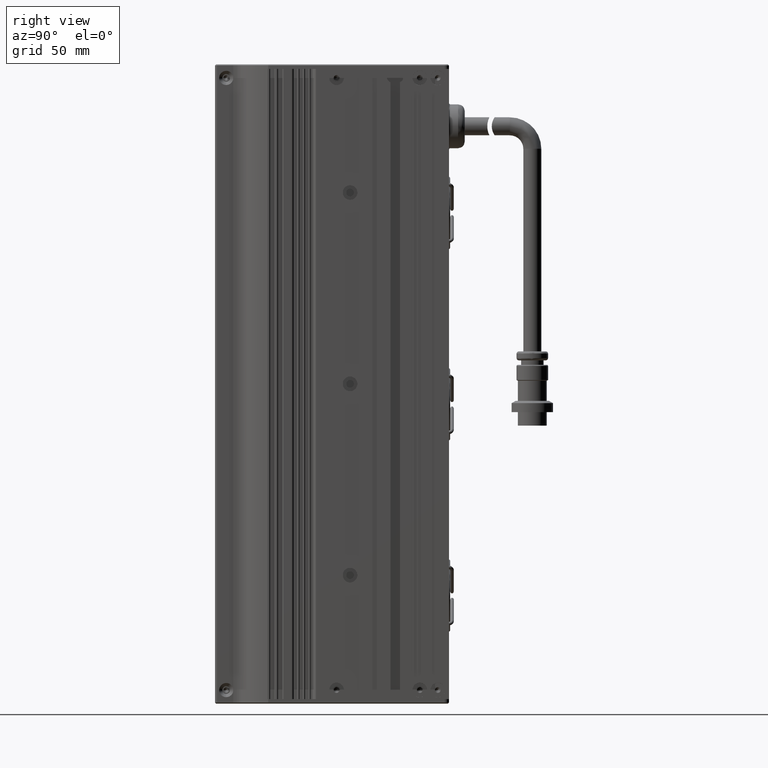
[diagram: clean part render]
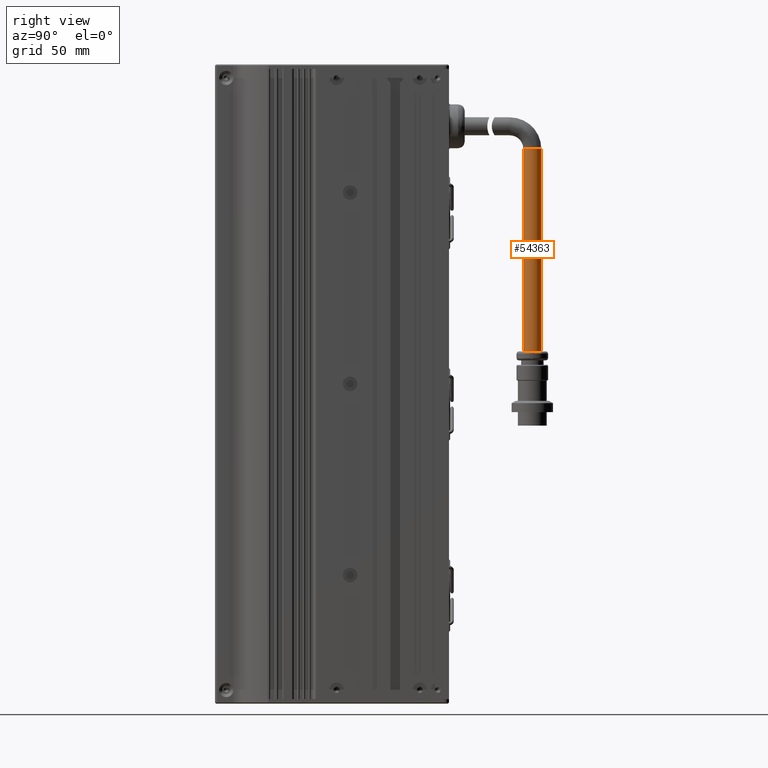
[diagram: same view with one face highlighted and labeled with its STEP entity id]
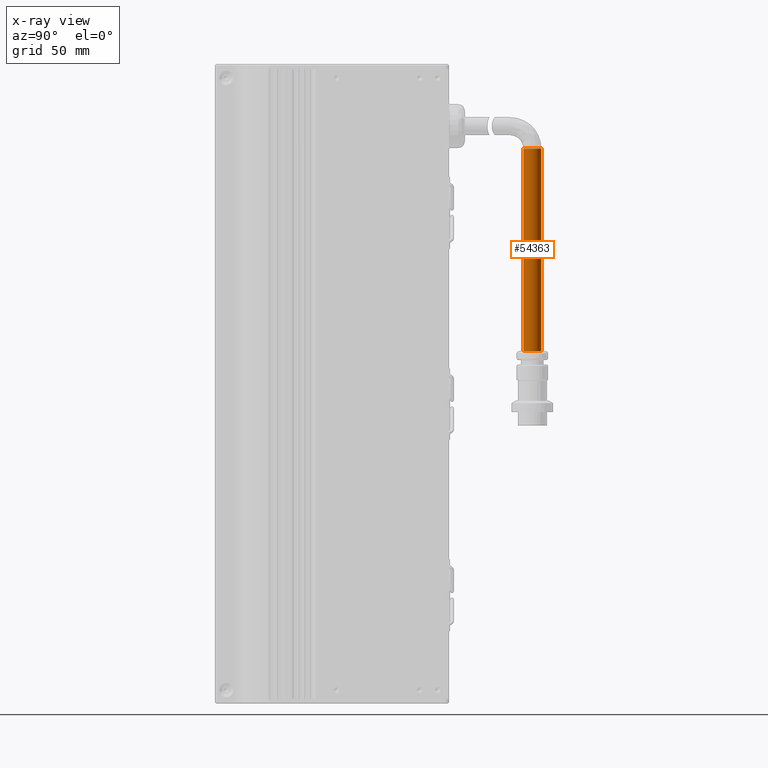
[diagram: x-ray of the same camera — body ghosted, the highlighted face saturated]
A machine part, right view. The second image highlights one B-rep face of the part: STEP entity #54363.
The next image is the same camera in x-ray: the body ghosted, the highlighted face saturated — about 0% of this face is hidden behind the body in this view.
In plain terms, the highlighted cylindrical surface (edge-blend (fillet) strip) has radius 4 mm, axis along (0, 0, -1).
Its self-contained STEP definition (entity closure, byte-faithful):
#106 = EDGE_CURVE ( 'NONE', #17267, #118065, #33824, .T. ) ;
#995 = DIRECTION ( 'NONE',  ( 5.551115123125729700E-017, 5.385191463057608100E-016, -1.000000000000000000 ) ) ;
#2513 = EDGE_CURVE ( 'NONE', #17267, #108561, #91484, .T. ) ;
#2882 = LINE ( 'NONE', #4242, #98716 ) ;
#4242 = CARTESIAN_POINT ( 'NONE',  ( -37.41201180637546700, 77.00452420306962200, 104.4999999999995300 ) ) ;
#5147 = AXIS2_PLACEMENT_3D ( 'NONE', #25843, #54373, #16292 ) ;
#7602 = CARTESIAN_POINT ( 'NONE',  ( -37.41201180637551000, 77.00452420306962200, 104.4999999999995300 ) ) ;
#8683 = CARTESIAN_POINT ( 'NONE',  ( -37.41201180637546000, 77.00452420306967800, 14.50000000000023300 ) ) ;
#12818 = ORIENTED_EDGE ( 'NONE', *, *, #53701, .T. ) ;
#13827 = CIRCLE ( 'NONE', #5147, 4.000000000000003600 ) ;
#16292 = DIRECTION ( 'NONE',  ( 1.734723475976805500E-015, -1.000000000000000000, -4.336808689942013800E-016 ) ) ;
#17267 = VERTEX_POINT ( 'NONE', #110290 ) ;
#20898 = CARTESIAN_POINT ( 'NONE',  ( -37.41201180637546700, 81.00452420306962200, 104.4999999999995300 ) ) ;
#25843 = CARTESIAN_POINT ( 'NONE',  ( -37.41201180637546000, 81.00452420306967800, 14.50000000000023400 ) ) ;
#31801 = AXIS2_PLACEMENT_3D ( 'NONE', #88299, #118078, #58989 ) ;
#33138 = AXIS2_PLACEMENT_3D ( 'NONE', #20898, #995, #123204 ) ;
#33226 = DIRECTION ( 'NONE',  ( 5.551115123125729700E-017, 5.385191463057608100E-016, -1.000000000000000000 ) ) ;
#33824 = CIRCLE ( 'NONE', #33138, 4.000000000000003600 ) ;
#51354 = ORIENTED_EDGE ( 'NONE', *, *, #119333, .T. ) ;
#53701 = EDGE_CURVE ( 'NONE', #118065, #85107, #2882, .T. ) ;
#54363 = ADVANCED_FACE ( 'NONE', ( #79747 ), #85971, .T. ) ;
#54373 = DIRECTION ( 'NONE',  ( -5.551115123125729700E-017, -5.385191463057608100E-016, 1.000000000000000000 ) ) ;
#55969 = CARTESIAN_POINT ( 'NONE',  ( -37.41201180637546000, 85.00452420306967800, 14.50000000000023600 ) ) ;
#58989 = DIRECTION ( 'NONE',  ( 0.0000000000000000000, -1.000000000000000000, 0.0000000000000000000 ) ) ;
#67593 = ORIENTED_EDGE ( 'NONE', *, *, #106, .T. ) ;
#73391 = ORIENTED_EDGE ( 'NONE', *, *, #2513, .F. ) ;
#77096 = DIRECTION ( 'NONE',  ( 5.551115123125729700E-017, 5.385191463057608100E-016, -1.000000000000000000 ) ) ;
#77973 = CARTESIAN_POINT ( 'NONE',  ( -37.41201180637546700, 85.00452420306962200, 104.4999999999995300 ) ) ;
#79747 = FACE_OUTER_BOUND ( 'NONE', #126206, .T. ) ;
#85107 = VERTEX_POINT ( 'NONE', #8683 ) ;
#85971 = CYLINDRICAL_SURFACE ( 'NONE', #31801, 4.000000000000003600 ) ;
#88299 = CARTESIAN_POINT ( 'NONE',  ( -37.41201180637546700, 81.00452420306962200, 104.4999999999995300 ) ) ;
#91484 = LINE ( 'NONE', #77973, #108451 ) ;
#98716 = VECTOR ( 'NONE', #33226, 1000.000000000000000 ) ;
#108451 = VECTOR ( 'NONE', #77096, 1000.000000000000000 ) ;
#108561 = VERTEX_POINT ( 'NONE', #55969 ) ;
#110290 = CARTESIAN_POINT ( 'NONE',  ( -37.41201180637551700, 85.00452420306963600, 104.4999999999995300 ) ) ;
#118065 = VERTEX_POINT ( 'NONE', #7602 ) ;
#118078 = DIRECTION ( 'NONE',  ( 5.551115123125729700E-017, 5.385191463057608100E-016, -1.000000000000000000 ) ) ;
#119333 = EDGE_CURVE ( 'NONE', #85107, #108561, #13827, .T. ) ;
#123204 = DIRECTION ( 'NONE',  ( 0.0000000000000000000, -1.000000000000000000, 0.0000000000000000000 ) ) ;
#126206 = EDGE_LOOP ( 'NONE', ( #73391, #67593, #12818, #51354 ) ) ;